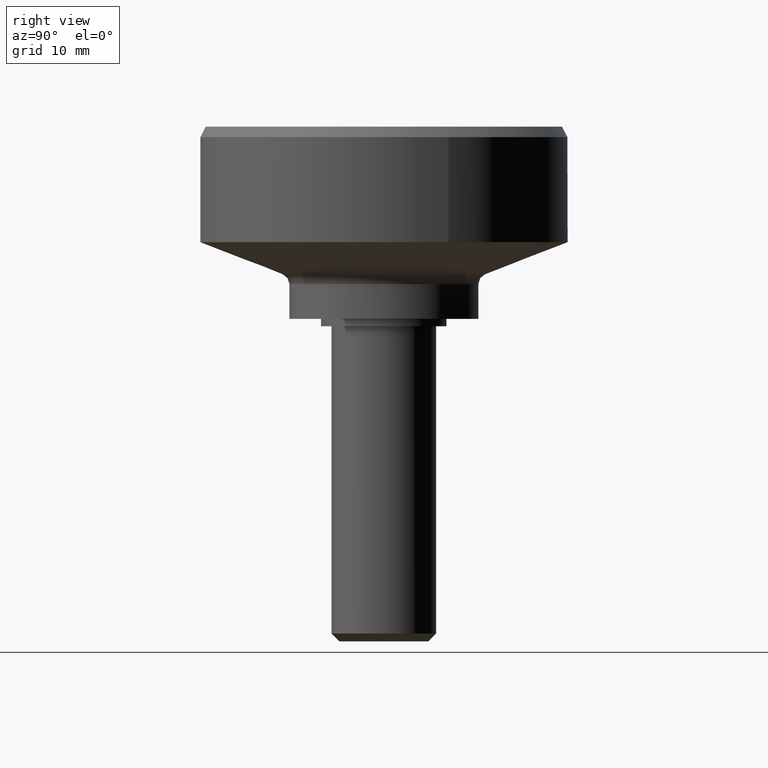
[diagram: clean part render]
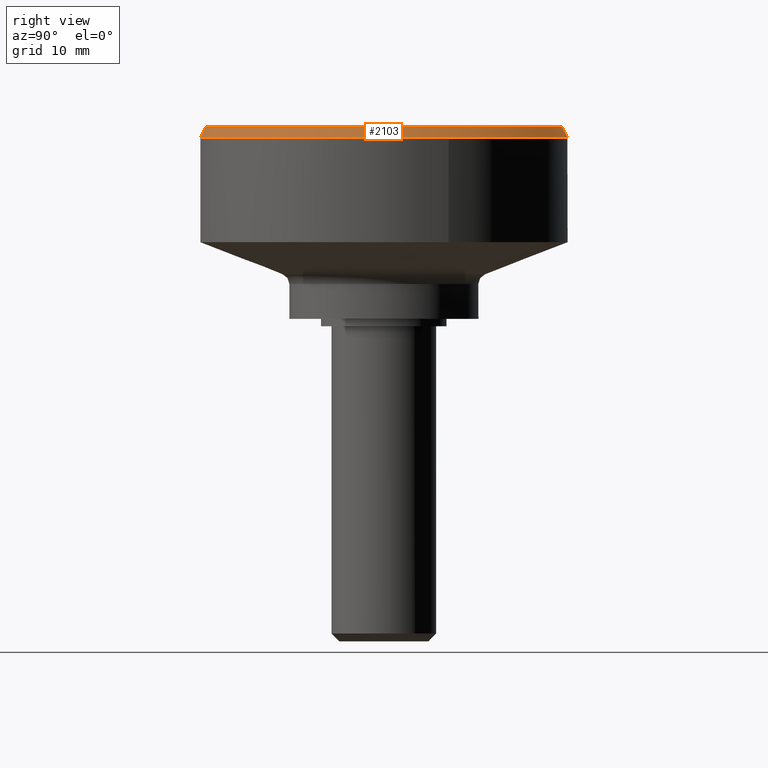
[diagram: same view with one face highlighted and labeled with its STEP entity id]
A machine part, right view. The second image highlights one B-rep face of the part: STEP entity #2103.
In plain terms, the highlighted face is a freeform B-spline surface patch.
Its self-contained STEP definition (entity closure, byte-faithful):
#1907=CARTESIAN_POINT('',(16.382515411358451,6.153307143036193,18.000000000000039));
#1908=VERTEX_POINT('',#1907);
#1909=CARTESIAN_POINT('',(17.500000000000000,0.0,18.0));
#1910=VERTEX_POINT('',#1909);
#1911=CARTESIAN_POINT('',(16.382515411358455,6.153307143036193,18.000000000000046));
#1912=CARTESIAN_POINT('',(17.500000000000004,3.178125168565275,18.0));
#1913=CARTESIAN_POINT('',(17.500000000000000,0.0,18.0));
#1921=(BOUNDED_CURVE()B_SPLINE_CURVE(2,(#1911,#1912,#1913),.UNSPECIFIED.,.F.,.U.)B_SPLINE_CURVE_WITH_KNOTS((3,3),(0.440284242330055,0.500000000000000),.UNSPECIFIED.)CURVE()GEOMETRIC_REPRESENTATION_ITEM()RATIONAL_B_SPLINE_CURVE((0.893499642050579,0.930038638088663,1.0))REPRESENTATION_ITEM(''));
#1922=EDGE_CURVE('',#1908,#1910,#1921,.T.);
#1924=CARTESIAN_POINT('',(1.068349441870334,-17.467358972382979,17.999999999996440));
#1925=VERTEX_POINT('',#1924);
#1926=CARTESIAN_POINT('',(17.500000000000000,0.0,18.0));
#1927=CARTESIAN_POINT('',(17.500000000000000,-16.462356170810921,18.0));
#1928=CARTESIAN_POINT('',(1.068349441870335,-17.467358972382979,17.999999999996440));
#1936=(BOUNDED_CURVE()B_SPLINE_CURVE(2,(#1926,#1927,#1928),.UNSPECIFIED.,.F.,.U.)B_SPLINE_CURVE_WITH_KNOTS((3,3),(0.500000000000000,0.739332962241563),.UNSPECIFIED.)CURVE()GEOMETRIC_REPRESENTATION_ITEM()RATIONAL_B_SPLINE_CURVE((1.0,0.719603993283641,0.976072041672333))REPRESENTATION_ITEM(''));
#1937=EDGE_CURVE('',#1910,#1925,#1936,.T.);
#1978=CARTESIAN_POINT('',(-2.065599106506693,17.377666711363791,17.999999999997559));
#1979=VERTEX_POINT('',#1978);
#1980=CARTESIAN_POINT('',(-2.065599106506693,17.377666711363791,17.999999999997559));
#1981=CARTESIAN_POINT('',(-1.036422093921844,17.499999999999996,18.000000000000004));
#1982=CARTESIAN_POINT('',(0.0,17.500000000000000,18.0));
#1983=CARTESIAN_POINT('',(12.120673779996153,17.500000000000007,18.000000000000004));
#1984=CARTESIAN_POINT('',(16.382515411358455,6.153307143036193,18.000000000000046));
#1992=(BOUNDED_CURVE()B_SPLINE_CURVE(2,(#1980,#1981,#1982,#1983,#1984),.UNSPECIFIED.,.F.,.U.)B_SPLINE_CURVE_WITH_KNOTS((3,2,3),(0.229562473515386,0.250000000000000,0.440284242330055),.UNSPECIFIED.)CURVE()GEOMETRIC_REPRESENTATION_ITEM()RATIONAL_B_SPLINE_CURVE((0.956026754187380,0.976055948333345,1.0,0.777068143097885,0.893499642050579))REPRESENTATION_ITEM(''));
#1993=EDGE_CURVE('',#1979,#1908,#1992,.T.);
#2032=CARTESIAN_POINT('',(-2.005106561231685,16.868749329102780,19.025000000000006));
#2033=CARTESIAN_POINT('',(-1.522330202737646,16.926134617433181,19.025000000000009));
#2034=CARTESIAN_POINT('',(-1.037062065348383,16.955814888191458,19.024999999999999));
#2035=CARTESIAN_POINT('',(15.918752822843082,17.992876953539838,19.025000000000002));
#2036=CARTESIAN_POINT('',(16.955814888191458,1.037062065348383,19.024999999999999));
#2037=CARTESIAN_POINT('',(17.992876953539838,-15.918752822843082,19.025000000000002));
#2038=CARTESIAN_POINT('',(1.037062065348383,-16.955814888191458,19.024999999999999));
#2039=CARTESIAN_POINT('',(-2.067111420124813,17.390389645920695,17.974374999999995));
#2040=CARTESIAN_POINT('',(-1.569405939875284,17.449549486673540,17.974374999999995));
#2041=CARTESIAN_POINT('',(-1.069131626272788,17.480147574487450,17.974374999999998));
#2042=CARTESIAN_POINT('',(16.411015948214665,18.549279200760243,17.974374999999998));
#2043=CARTESIAN_POINT('',(17.480147574487450,1.069131626272788,17.974374999999998));
#2044=CARTESIAN_POINT('',(18.549279200760243,-16.411015948214665,17.974374999999998));
#2045=CARTESIAN_POINT('',(1.069131626272788,-17.480147574487450,17.974374999999998));
#2053=(BOUNDED_SURFACE()B_SPLINE_SURFACE(2,1,((#2032,#2039),(#2033,#2040),(#2034,#2041),(#2035,#2042),(#2036,#2043),(#2037,#2044),(#2038,#2045)),.UNSPECIFIED.,.F.,.F.,.U.)B_SPLINE_SURFACE_WITH_KNOTS((3,2,2,3),(2,2),(0.0,1.160647112447532,30.176824923635799,59.193002734824070),(0.0,1.0),.UNSPECIFIED.)GEOMETRIC_REPRESENTATION_ITEM()RATIONAL_B_SPLINE_SURFACE(((0.977505800795127,0.977505800795127),(0.988284271247462,0.988284271247462),(1.0,1.0),(0.707106781186548,0.707106781186548),(1.0,1.0),(0.707106781186548,0.707106781186548),(1.0,1.0)))REPRESENTATION_ITEM('')SURFACE());
#2054=ORIENTED_EDGE('',*,*,#1993,.F.);
#2055=CARTESIAN_POINT('',(-2.006581989190305,16.881161948181639,18.999999999995381));
#2056=VERTEX_POINT('',#2055);
#2057=CARTESIAN_POINT('',(-2.006581989190305,16.881161948181639,18.999999999995381));
#2058=CARTESIAN_POINT('',(-2.065599106506693,17.377666711363791,17.999999999997559));
#2059=QUASI_UNIFORM_CURVE('',1,(#2057,#2058),.UNSPECIFIED.,.F.,.U.);
#2060=EDGE_CURVE('',#2056,#1979,#2059,.T.);
#2061=ORIENTED_EDGE('',*,*,#2060,.F.);
#2062=CARTESIAN_POINT('',(17.0,0.0,19.0));
#2063=VERTEX_POINT('',#2062);
#2064=CARTESIAN_POINT('',(-2.006581989190305,16.881161948181635,18.999999999995381));
#2065=CARTESIAN_POINT('',(-1.006810034107876,16.999999999999996,19.000000000000004));
#2066=CARTESIAN_POINT('',(0.0,17.0,19.0));
#2067=CARTESIAN_POINT('',(17.000000000000004,17.000000000000004,18.999999999999993));
#2068=CARTESIAN_POINT('',(17.0,0.0,19.0));
#2076=(BOUNDED_CURVE()B_SPLINE_CURVE(2,(#2064,#2065,#2066,#2067,#2068),.UNSPECIFIED.,.F.,.U.)B_SPLINE_CURVE_WITH_KNOTS((3,2,3),(0.229562473515141,0.250000000000000,0.500000000000000),.UNSPECIFIED.)CURVE()GEOMETRIC_REPRESENTATION_ITEM()RATIONAL_B_SPLINE_CURVE((0.956026754186899,0.976055948333058,1.0,0.707106781186548,1.0))REPRESENTATION_ITEM(''));
#2077=EDGE_CURVE('',#2056,#2063,#2076,.T.);
#2078=ORIENTED_EDGE('',*,*,#2077,.T.);
#2079=CARTESIAN_POINT('',(1.037825172104080,-16.968291573172081,18.999999999997911));
#2080=VERTEX_POINT('',#2079);
#2081=CARTESIAN_POINT('',(17.0,0.0,19.0));
#2082=CARTESIAN_POINT('',(17.0,-15.992003137375258,19.000000000000004));
#2083=CARTESIAN_POINT('',(1.037825172104080,-16.968291573172085,18.999999999997907));
#2091=(BOUNDED_CURVE()B_SPLINE_CURVE(2,(#2081,#2082,#2083),.UNSPECIFIED.,.F.,.U.)B_SPLINE_CURVE_WITH_KNOTS((3,3),(0.500000000000000,0.739332962241736),.UNSPECIFIED.)CURVE()GEOMETRIC_REPRESENTATION_ITEM()RATIONAL_B_SPLINE_CURVE((1.0,0.719603993283438,0.976072041672704))REPRESENTATION_ITEM(''));
#2092=EDGE_CURVE('',#2063,#2080,#2091,.T.);
#2093=ORIENTED_EDGE('',*,*,#2092,.T.);
#2094=CARTESIAN_POINT('',(1.037825172104080,-16.968291573172081,18.999999999997911));
#2095=CARTESIAN_POINT('',(1.068349441870334,-17.467358972382979,17.999999999996440));
#2096=QUASI_UNIFORM_CURVE('',1,(#2094,#2095),.UNSPECIFIED.,.F.,.U.);
#2097=EDGE_CURVE('',#2080,#1925,#2096,.T.);
#2098=ORIENTED_EDGE('',*,*,#2097,.T.);
#2099=ORIENTED_EDGE('',*,*,#1937,.F.);
#2100=ORIENTED_EDGE('',*,*,#1922,.F.);
#2101=EDGE_LOOP('',(#2054,#2061,#2078,#2093,#2098,#2099,#2100));
#2102=FACE_OUTER_BOUND('',#2101,.T.);
#2103=ADVANCED_FACE('',(#2102),#2053,.T.);